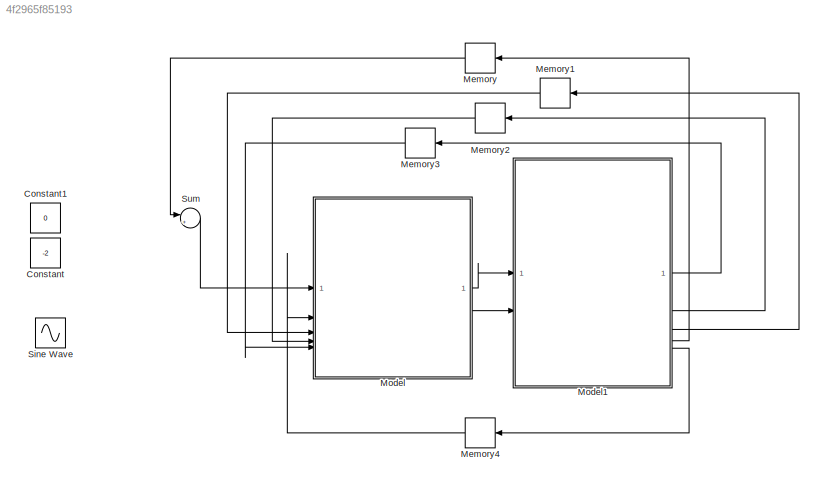
MODEL slx_4f2965f85193
KIND model
CONFIG AbsTol = auto
CONFIG EnableMultiTasking = off
CONFIG FixedStep = auto
CONFIG MaxStep = auto
CONFIG MinStep = auto
CONFIG RelTol = 1e-3
CONFIG SampleTimeConstraint = Unconstrained
CONFIG SolverName = ode1be
CONFIG StartTime = 0.0
CONFIG StopTime = 10
BLOCK [Constant] Constant
  Value = -2
BLOCK [Constant] Constant1
  Value = 0
BLOCK [Memory] Memory
  NameLocation = top
BLOCK [Memory] Memory1
  NameLocation = top
BLOCK [Memory] Memory2
  NameLocation = top
BLOCK [Memory] Memory3
  NameLocation = top
BLOCK [Memory] Memory4
  NameLocation = top
BLOCK [ModelReference] Model
  ModelNameDialog = MCU_M2022.slx
  ModelReferenceVersion = 2.0
BLOCK [ModelReference] Model1
  ModelNameDialog = ControlOblectSUBMod2022.slx
  ModelReferenceVersion = 1.0
BLOCK [Sin] Sine Wave
  SampleTime = 0
BLOCK [Sum] Sum
  Inputs = |++
LINE Memory1:1 -> Model:3
LINE Memory2:1 -> Model:4
LINE Memory3:1 -> Model:5
LINE Memory4:1 -> Model:2
LINE Memory:1 -> Sum:1
LINE Model1:1 -> Memory3:1
LINE Model1:2 -> Memory2:1
LINE Model1:3 -> Memory1:1
LINE Model1:4 -> Memory:1
LINE Model1:5 -> Memory4:1
LINE Model:1 -> Model1:1
LINE Model:2 -> Model1:2
LINE Sum:1 -> Model:1
